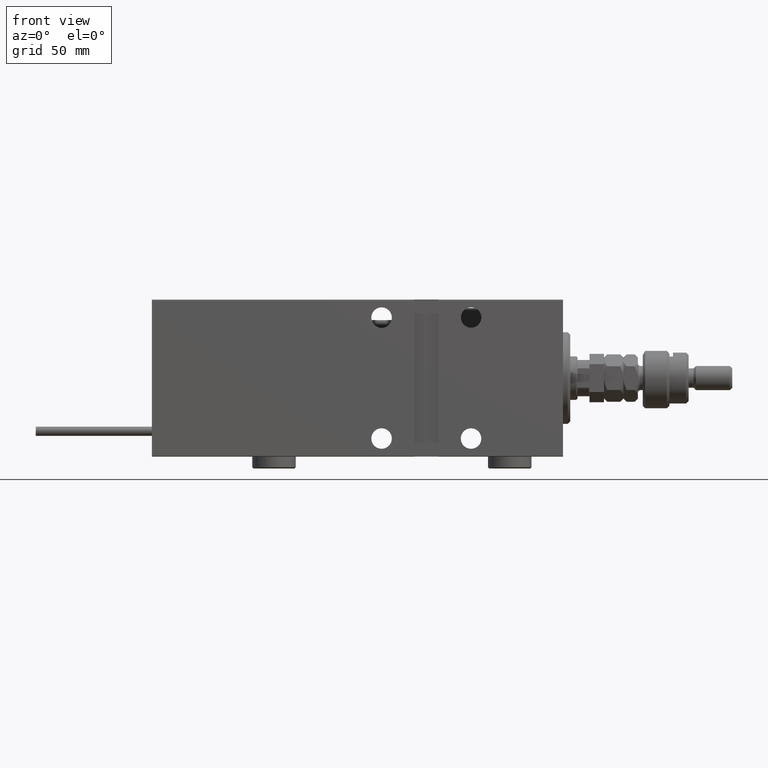
[diagram: clean part render]
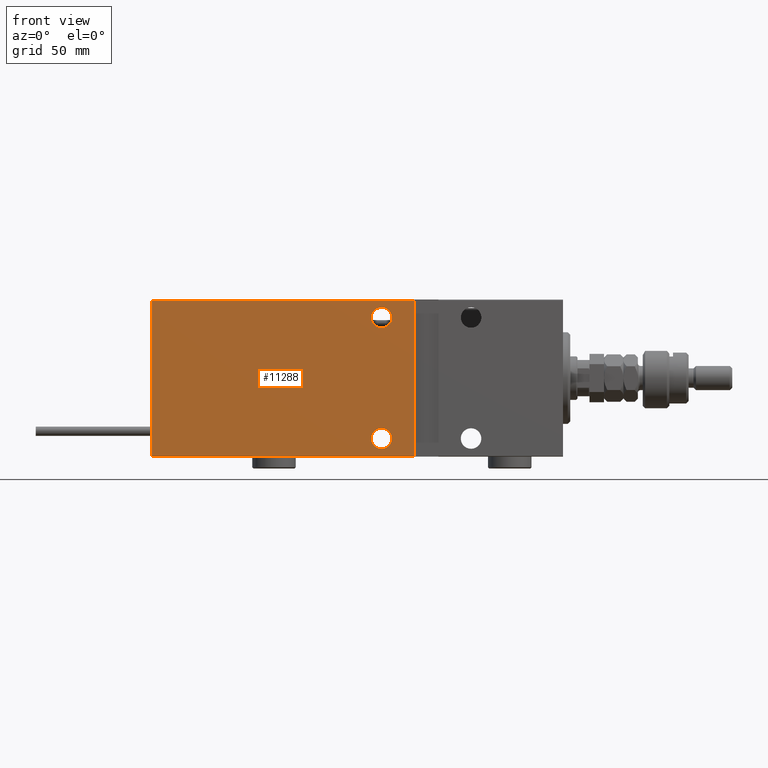
[diagram: same view with one face highlighted and labeled with its STEP entity id]
A machine part, front view. The second image highlights one B-rep face of the part: STEP entity #11288.
In plain terms, the highlighted planar face has unit normal (-0, 1, -0).
Its self-contained STEP definition (entity closure, byte-faithful):
#1059 = CARTESIAN_POINT ( 'NONE',  ( 75.00000000000001421, 22.50000000000001776, -25.00000000000000000 ) ) ;
#1158 = ORIENTED_EDGE ( 'NONE', *, *, #7799, .F. ) ;
#1249 = CIRCLE ( 'NONE', #21209, 4.250000000000003553 ) ;
#2952 = FACE_BOUND ( 'NONE', #4197, .T. ) ;
#3595 = AXIS2_PLACEMENT_3D ( 'NONE', #21616, #43050, #46851 ) ;
#4197 = EDGE_LOOP ( 'NONE', ( #45643, #43984 ) ) ;
#4439 = VERTEX_POINT ( 'NONE', #43075 ) ;
#4723 = VECTOR ( 'NONE', #36105, 1000.000000000000000 ) ;
#5700 = CARTESIAN_POINT ( 'NONE',  ( 75.00000000000001421, 22.50000000000001776, 20.74999999999999645 ) ) ;
#5786 = DIRECTION ( 'NONE',  ( 0.000000000000000000, 1.000000000000000000, 0.000000000000000000 ) ) ;
#6737 = CARTESIAN_POINT ( 'NONE',  ( 170.0000000000000000, 22.50000000000000355, -32.50000000000000000 ) ) ;
#7799 = EDGE_CURVE ( 'NONE', #12347, #42703, #13391, .T. ) ;
#8493 = CARTESIAN_POINT ( 'NONE',  ( 170.0000000000000000, 22.49999999999999645, 32.19999999999998153 ) ) ;
#9331 = CARTESIAN_POINT ( 'NONE',  ( 61.50000000000000711, 22.50000000000000000, 32.50000000000000000 ) ) ;
#9430 = EDGE_CURVE ( 'NONE', #15201, #41915, #35785, .T. ) ;
#10297 = ORIENTED_EDGE ( 'NONE', *, *, #22250, .F. ) ;
#10394 = DIRECTION ( 'NONE',  ( 0.000000000000000000, 0.000000000000000000, 1.000000000000000000 ) ) ;
#10770 = EDGE_LOOP ( 'NONE', ( #1158, #42333 ) ) ;
#11288 = ADVANCED_FACE ( 'NONE', ( #2952, #12160, #46100 ), #45042, .F. ) ;
#11562 = VERTEX_POINT ( 'NONE', #43631 ) ;
#11692 = VECTOR ( 'NONE', #48014, 1000.000000000000000 ) ;
#12160 = FACE_BOUND ( 'NONE', #10770, .T. ) ;
#12221 = VERTEX_POINT ( 'NONE', #33893 ) ;
#12282 = VERTEX_POINT ( 'NONE', #22207 ) ;
#12347 = VERTEX_POINT ( 'NONE', #50744 ) ;
#12760 = EDGE_CURVE ( 'NONE', #12282, #41915, #28350, .T. ) ;
#13391 = CIRCLE ( 'NONE', #24667, 4.250000000000003553 ) ;
#13507 = AXIS2_PLACEMENT_3D ( 'NONE', #33621, #28493, #24684 ) ;
#14444 = VECTOR ( 'NONE', #28616, 1000.000000000000000 ) ;
#15201 = VERTEX_POINT ( 'NONE', #19863 ) ;
#16040 = VECTOR ( 'NONE', #25909, 1000.000000000000000 ) ;
#16461 = ORIENTED_EDGE ( 'NONE', *, *, #9430, .F. ) ;
#16803 = DIRECTION ( 'NONE',  ( 0.000000000000000000, 1.000000000000000000, 0.000000000000000000 ) ) ;
#17271 = CIRCLE ( 'NONE', #29426, 4.250000000000003553 ) ;
#19530 = CARTESIAN_POINT ( 'NONE',  ( 170.0000000000000000, 22.50000000000000355, -32.19999999999998153 ) ) ;
#19863 = CARTESIAN_POINT ( 'NONE',  ( 170.0000000000000000, 22.50000000000000355, -32.19999999999998153 ) ) ;
#21209 = AXIS2_PLACEMENT_3D ( 'NONE', #30635, #39582, #47737 ) ;
#21482 = EDGE_CURVE ( 'NONE', #15201, #12221, #49417, .T. ) ;
#21574 = EDGE_CURVE ( 'NONE', #42703, #12347, #1249, .T. ) ;
#21616 = CARTESIAN_POINT ( 'NONE',  ( 75.00000000000001421, 22.50000000000001776, -25.00000000000000000 ) ) ;
#21696 = DIRECTION ( 'NONE',  ( 0.000000000000000000, 0.000000000000000000, 1.000000000000000000 ) ) ;
#21821 = LINE ( 'NONE', #9331, #16040 ) ;
#21876 = EDGE_LOOP ( 'NONE', ( #16461, #34962, #10297, #32238 ) ) ;
#22207 = CARTESIAN_POINT ( 'NONE',  ( 61.50000000000000711, 22.50000000000000000, 32.19999999999998153 ) ) ;
#22250 = EDGE_CURVE ( 'NONE', #12282, #12221, #21821, .T. ) ;
#22894 = CARTESIAN_POINT ( 'NONE',  ( 75.00000000000001421, 22.50000000000001776, 25.00000000000000000 ) ) ;
#24667 = AXIS2_PLACEMENT_3D ( 'NONE', #22894, #5786, #10394 ) ;
#24684 = DIRECTION ( 'NONE',  ( 0.000000000000000000, 1.067522139062650425E-16, -1.000000000000000000 ) ) ;
#25909 = DIRECTION ( 'NONE',  ( -2.135044278125300850E-16, 0.000000000000000000, -1.000000000000000000 ) ) ;
#28350 = LINE ( 'NONE', #8493, #14444 ) ;
#28493 = DIRECTION ( 'NONE',  ( 0.000000000000000000, -1.000000000000000000, -1.067522139062650425E-16 ) ) ;
#28616 = DIRECTION ( 'NONE',  ( 1.000000000000000000, 0.000000000000000000, 0.000000000000000000 ) ) ;
#29426 = AXIS2_PLACEMENT_3D ( 'NONE', #1059, #16803, #21696 ) ;
#30635 = CARTESIAN_POINT ( 'NONE',  ( 75.00000000000001421, 22.50000000000001776, 25.00000000000000000 ) ) ;
#32238 = ORIENTED_EDGE ( 'NONE', *, *, #12760, .T. ) ;
#33621 = CARTESIAN_POINT ( 'NONE',  ( 170.0000000000000000, 22.50000000000000355, -32.50000000000000000 ) ) ;
#33893 = CARTESIAN_POINT ( 'NONE',  ( 61.49999999999999289, 22.50000000000000000, -32.19999999999998153 ) ) ;
#34356 = CARTESIAN_POINT ( 'NONE',  ( 170.0000000000000000, 22.49999999999999645, 32.19999999999998153 ) ) ;
#34962 = ORIENTED_EDGE ( 'NONE', *, *, #21482, .T. ) ;
#35785 = LINE ( 'NONE', #6737, #11692 ) ;
#35801 = EDGE_CURVE ( 'NONE', #11562, #4439, #17271, .T. ) ;
#36105 = DIRECTION ( 'NONE',  ( -1.000000000000000000, 0.000000000000000000, 0.000000000000000000 ) ) ;
#39582 = DIRECTION ( 'NONE',  ( 0.000000000000000000, 1.000000000000000000, 0.000000000000000000 ) ) ;
#41915 = VERTEX_POINT ( 'NONE', #34356 ) ;
#42333 = ORIENTED_EDGE ( 'NONE', *, *, #21574, .F. ) ;
#42703 = VERTEX_POINT ( 'NONE', #5700 ) ;
#42864 = EDGE_CURVE ( 'NONE', #4439, #11562, #52191, .T. ) ;
#43050 = DIRECTION ( 'NONE',  ( 0.000000000000000000, 1.000000000000000000, 0.000000000000000000 ) ) ;
#43075 = CARTESIAN_POINT ( 'NONE',  ( 75.00000000000001421, 22.50000000000001776, -20.74999999999999645 ) ) ;
#43631 = CARTESIAN_POINT ( 'NONE',  ( 75.00000000000001421, 22.50000000000001776, -29.25000000000000355 ) ) ;
#43984 = ORIENTED_EDGE ( 'NONE', *, *, #35801, .F. ) ;
#45042 = PLANE ( 'NONE',  #13507 ) ;
#45643 = ORIENTED_EDGE ( 'NONE', *, *, #42864, .F. ) ;
#46100 = FACE_OUTER_BOUND ( 'NONE', #21876, .T. ) ;
#46851 = DIRECTION ( 'NONE',  ( 0.000000000000000000, 0.000000000000000000, 1.000000000000000000 ) ) ;
#47737 = DIRECTION ( 'NONE',  ( 0.000000000000000000, 0.000000000000000000, 1.000000000000000000 ) ) ;
#48014 = DIRECTION ( 'NONE',  ( 0.000000000000000000, -1.067522139062650425E-16, 1.000000000000000000 ) ) ;
#49417 = LINE ( 'NONE', #19530, #4723 ) ;
#50744 = CARTESIAN_POINT ( 'NONE',  ( 75.00000000000001421, 22.50000000000001776, 29.25000000000000355 ) ) ;
#52191 = CIRCLE ( 'NONE', #3595, 4.250000000000003553 ) ;